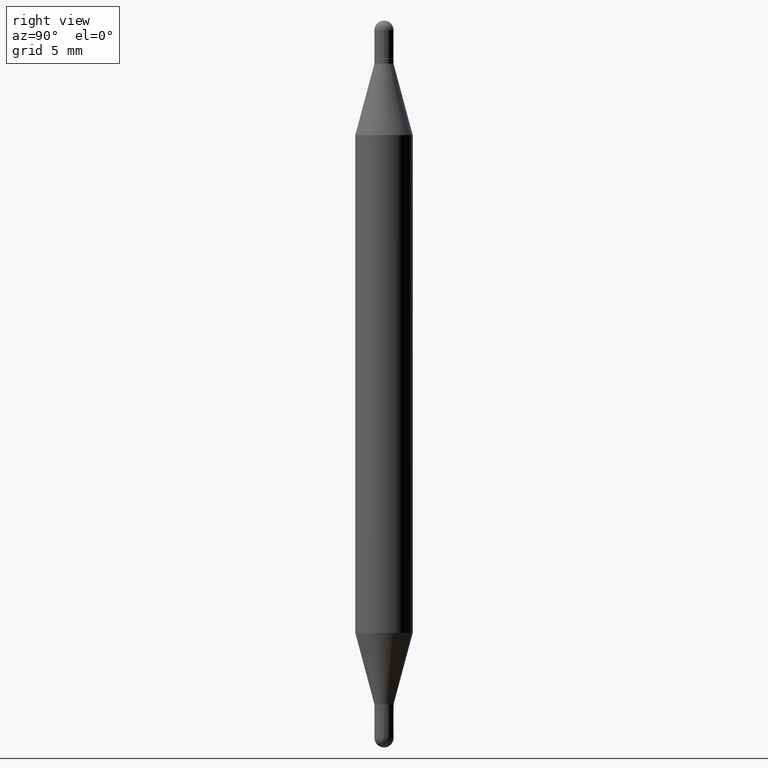
[diagram: clean part render]
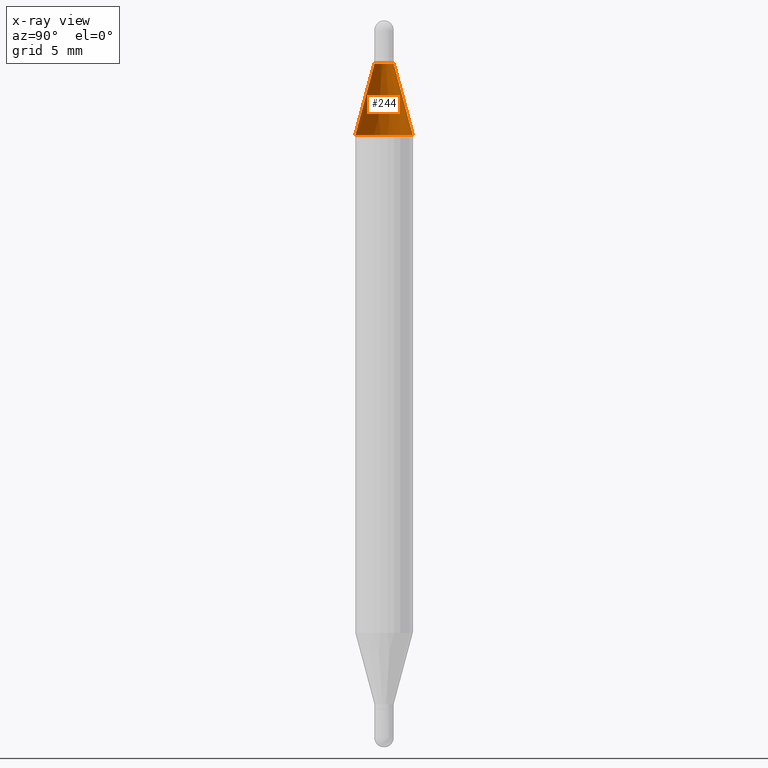
[diagram: x-ray — body ghosted, one internal face saturated and labeled with its STEP entity id]
A machine part, right view, then the same camera in x-ray: the body is ghosted and one INTERNAL B-rep face — a face not visible from any outside direction — is saturated and labeled: STEP entity #244.
In plain terms, the highlighted conical surface has half-angle 15 deg.
Its self-contained STEP definition (entity closure, byte-faithful):
#68 = EDGE_LOOP ( 'NONE', ( #711, #599, #671, #680 ) ) ;
#87 = DIRECTION ( 'NONE',  ( -6.982962677686265922E-15, -1.000000000000000000, 3.466812174700886453E-15 ) ) ;
#127 = LINE ( 'NONE', #317, #837 ) ;
#164 = EDGE_CURVE ( 'NONE', #230, #411, #874, .T. ) ;
#219 = DIRECTION ( 'NONE',  ( -1.807323732225330534E-15, -0.2588190451025250138, -0.9659258262890670910 ) ) ;
#230 = VERTEX_POINT ( 'NONE', #253 ) ;
#244 = ADVANCED_FACE ( 'NONE', ( #422 ), #383, .T. ) ;
#253 = CARTESIAN_POINT ( 'NONE',  ( 1.351518105561320057E-16, 0.01969999999999944365, -0.08900000000000013456 ) ) ;
#271 = CARTESIAN_POINT ( 'NONE',  ( 3.450696088028658028E-29, -3.047047853123464456E-16, -0.08900000000000006517 ) ) ;
#303 = AXIS2_PLACEMENT_3D ( 'NONE', #475, #480, #824 ) ;
#317 = CARTESIAN_POINT ( 'NONE',  ( 1.351518105561319071E-16, 0.01969999999999944365, -0.08900000000000013456 ) ) ;
#344 = VERTEX_POINT ( 'NONE', #769 ) ;
#363 = CARTESIAN_POINT ( 'NONE',  ( -1.375643647503831486E-16, -0.01970000000000004733, -0.08899999999999999578 ) ) ;
#383 = CONICAL_SURFACE ( 'NONE', #931, 0.01969999999999974549, 0.2617993877991502960 ) ;
#384 = EDGE_CURVE ( 'NONE', #411, #949, #457, .T. ) ;
#402 = DIRECTION ( 'NONE',  ( 1.775627540710965497E-15, 0.2588190451025182415, -0.9659258262890689783 ) ) ;
#411 = VERTEX_POINT ( 'NONE', #363 ) ;
#422 = FACE_OUTER_BOUND ( 'NONE', #68, .T. ) ;
#434 = AXIS2_PLACEMENT_3D ( 'NONE', #531, #978, #875 ) ;
#435 = EDGE_CURVE ( 'NONE', #344, #949, #906, .T. ) ;
#457 = LINE ( 'NONE', #879, #1053 ) ;
#475 = CARTESIAN_POINT ( 'NONE',  ( 3.450696088028658028E-29, -3.047047853123464456E-16, -0.08900000000000006517 ) ) ;
#480 = DIRECTION ( 'NONE',  ( 2.452346022335767416E-29, 3.489463031932366411E-15, 1.000000000000000000 ) ) ;
#531 = CARTESIAN_POINT ( 'NONE',  ( 3.090553871874308525E-29, -8.171540637024477937E-16, -0.2358561992778358263 ) ) ;
#599 = ORIENTED_EDGE ( 'NONE', *, *, #1026, .T. ) ;
#671 = ORIENTED_EDGE ( 'NONE', *, *, #435, .T. ) ;
#680 = ORIENTED_EDGE ( 'NONE', *, *, #384, .F. ) ;
#711 = ORIENTED_EDGE ( 'NONE', *, *, #164, .F. ) ;
#769 = CARTESIAN_POINT ( 'NONE',  ( 4.051124067684397324E-16, 0.05904999999999917953, -0.2358561992778360206 ) ) ;
#824 = DIRECTION ( 'NONE',  ( -6.982962677686265922E-15, -1.000000000000000000, 3.466812174700886453E-15 ) ) ;
#837 = VECTOR ( 'NONE', #402, 39.37007874015748143 ) ;
#874 = CIRCLE ( 'NONE', #303, 0.01969999999999974549 ) ;
#875 = DIRECTION ( 'NONE',  ( -6.982962677686265922E-15, -1.000000000000000000, 3.469747663417777002E-15 ) ) ;
#879 = CARTESIAN_POINT ( 'NONE',  ( -1.375643647503831486E-16, -0.01970000000000004733, -0.08899999999999999578 ) ) ;
#906 = CIRCLE ( 'NONE', #434, 0.05905000000000000526 ) ;
#931 = AXIS2_PLACEMENT_3D ( 'NONE', #271, #1110, #87 ) ;
#949 = VERTEX_POINT ( 'NONE', #1089 ) ;
#978 = DIRECTION ( 'NONE',  ( 2.452346022335767416E-29, 3.489463031932366411E-15, 1.000000000000000000 ) ) ;
#1026 = EDGE_CURVE ( 'NONE', #230, #344, #127, .T. ) ;
#1053 = VECTOR ( 'NONE', #219, 39.37007874015748143 ) ;
#1089 = CARTESIAN_POINT ( 'NONE',  ( -4.123439461173431192E-16, -0.05905000000000081711, -0.2358561992778356042 ) ) ;
#1110 = DIRECTION ( 'NONE',  ( -2.452346022335767416E-29, -3.489463031932366411E-15, -1.000000000000000000 ) ) ;